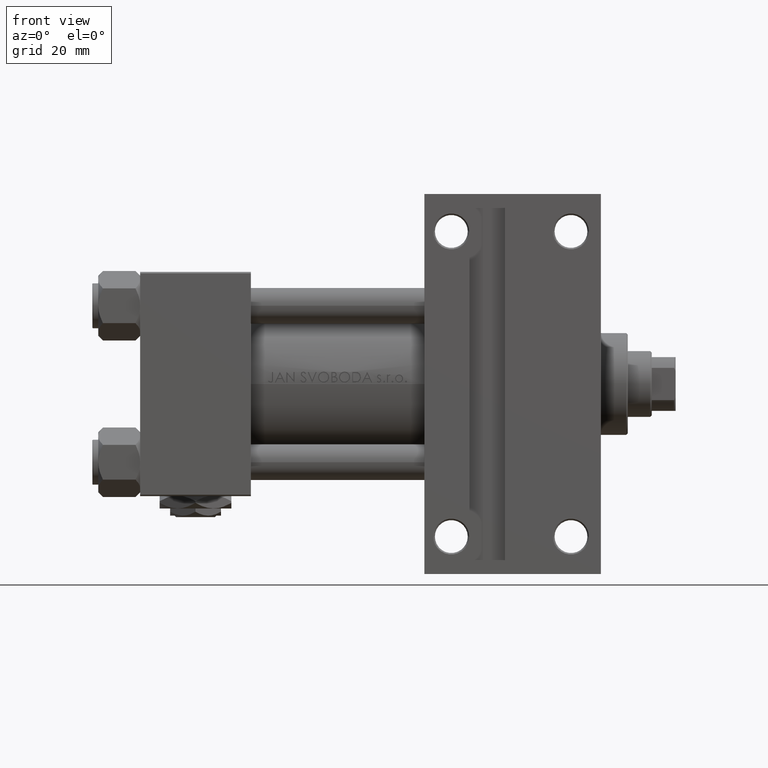
[diagram: clean part render]
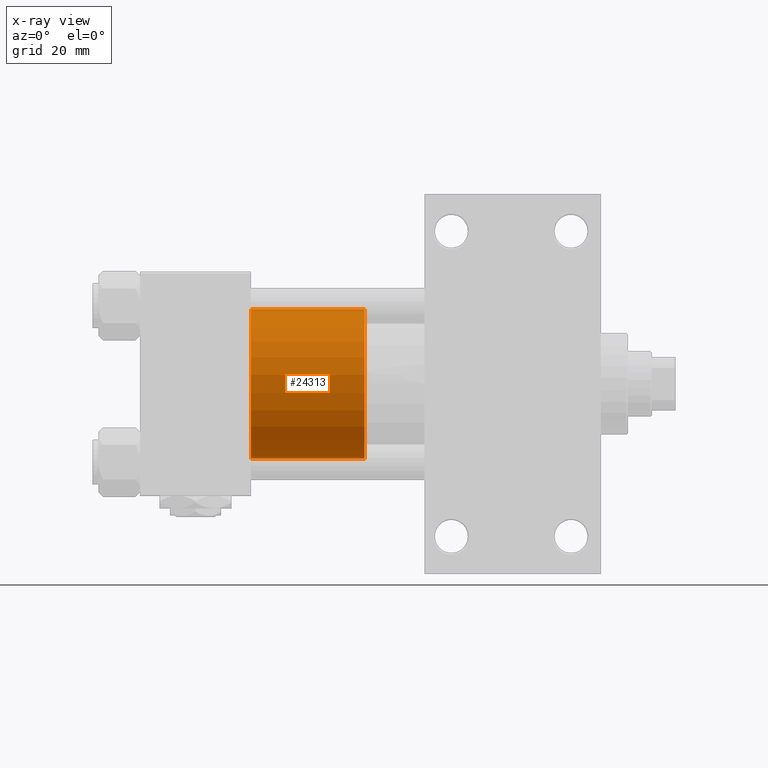
[diagram: x-ray — body ghosted, one internal face saturated and labeled with its STEP entity id]
A machine part, front view, then the same camera in x-ray: the body is ghosted and one INTERNAL B-rep face — a face not visible from any outside direction — is saturated and labeled: STEP entity #24313.
In plain terms, the highlighted cylindrical surface (partial cylindrical patch) has radius 25 mm, axis along (-1, 0, 0).
Its self-contained STEP definition (entity closure, byte-faithful):
#999 = DIRECTION ( 'NONE',  ( 1.000000000000000000, 0.000000000000000000, 0.000000000000000000 ) ) ;
#2478 = CARTESIAN_POINT ( 'NONE',  ( 25.00000000000000000, 3.061616997868383043E-15, 38.00000000000000000 ) ) ;
#2627 = VERTEX_POINT ( 'NONE', #31069 ) ;
#3911 = CARTESIAN_POINT ( 'NONE',  ( -25.00000000000000000, 0.000000000000000000, 0.000000000000000000 ) ) ;
#5971 = ORIENTED_EDGE ( 'NONE', *, *, #49341, .F. ) ;
#6123 = DIRECTION ( 'NONE',  ( -1.000000000000000000, 0.000000000000000000, 0.000000000000000000 ) ) ;
#7254 = LINE ( 'NONE', #2478, #22747 ) ;
#7778 = LINE ( 'NONE', #38419, #38083 ) ;
#9505 = CIRCLE ( 'NONE', #45561, 25.00000000000000000 ) ;
#9708 = AXIS2_PLACEMENT_3D ( 'NONE', #32495, #47820, #6123 ) ;
#13212 = ORIENTED_EDGE ( 'NONE', *, *, #40623, .F. ) ;
#13666 = EDGE_LOOP ( 'NONE', ( #13212, #46188, #38263, #5971 ) ) ;
#14641 = DIRECTION ( 'NONE',  ( 0.000000000000000000, 0.000000000000000000, 1.000000000000000000 ) ) ;
#14923 = VERTEX_POINT ( 'NONE', #3911 ) ;
#16825 = CARTESIAN_POINT ( 'NONE',  ( 0.000000000000000000, 0.000000000000000000, 0.000000000000000000 ) ) ;
#18503 = EDGE_CURVE ( 'NONE', #28823, #14923, #9505, .T. ) ;
#20970 = FACE_OUTER_BOUND ( 'NONE', #13666, .T. ) ;
#22747 = VECTOR ( 'NONE', #29347, 1000.000000000000000 ) ;
#24313 = ADVANCED_FACE ( 'NONE', ( #20970 ), #36274, .T. ) ;
#26590 = CIRCLE ( 'NONE', #35449, 25.00000000000000000 ) ;
#27318 = CARTESIAN_POINT ( 'NONE',  ( -25.00000000000000000, 0.000000000000000000, 38.00000000000000000 ) ) ;
#28823 = VERTEX_POINT ( 'NONE', #45984 ) ;
#29172 = VERTEX_POINT ( 'NONE', #27318 ) ;
#29347 = DIRECTION ( 'NONE',  ( -0.000000000000000000, -0.000000000000000000, -1.000000000000000000 ) ) ;
#30451 = CARTESIAN_POINT ( 'NONE',  ( 0.000000000000000000, 0.000000000000000000, 38.00000000000000000 ) ) ;
#31069 = CARTESIAN_POINT ( 'NONE',  ( 25.00000000000000000, 3.061616997868383043E-15, 38.00000000000000000 ) ) ;
#32495 = CARTESIAN_POINT ( 'NONE',  ( 0.000000000000000000, 0.000000000000000000, 38.00000000000000000 ) ) ;
#33816 = EDGE_CURVE ( 'NONE', #2627, #28823, #7254, .T. ) ;
#35449 = AXIS2_PLACEMENT_3D ( 'NONE', #30451, #14641, #45768 ) ;
#36274 = CYLINDRICAL_SURFACE ( 'NONE', #9708, 25.00000000000000000 ) ;
#38083 = VECTOR ( 'NONE', #44945, 1000.000000000000000 ) ;
#38263 = ORIENTED_EDGE ( 'NONE', *, *, #18503, .T. ) ;
#38419 = CARTESIAN_POINT ( 'NONE',  ( -25.00000000000000000, 0.000000000000000000, 38.00000000000000000 ) ) ;
#40623 = EDGE_CURVE ( 'NONE', #2627, #29172, #26590, .T. ) ;
#42700 = DIRECTION ( 'NONE',  ( 0.000000000000000000, 0.000000000000000000, 1.000000000000000000 ) ) ;
#44945 = DIRECTION ( 'NONE',  ( -0.000000000000000000, -0.000000000000000000, -1.000000000000000000 ) ) ;
#45561 = AXIS2_PLACEMENT_3D ( 'NONE', #16825, #42700, #999 ) ;
#45768 = DIRECTION ( 'NONE',  ( 1.000000000000000000, 0.000000000000000000, 0.000000000000000000 ) ) ;
#45984 = CARTESIAN_POINT ( 'NONE',  ( 25.00000000000000000, 3.061616997868383043E-15, 0.000000000000000000 ) ) ;
#46188 = ORIENTED_EDGE ( 'NONE', *, *, #33816, .T. ) ;
#47820 = DIRECTION ( 'NONE',  ( -0.000000000000000000, -0.000000000000000000, -1.000000000000000000 ) ) ;
#49341 = EDGE_CURVE ( 'NONE', #29172, #14923, #7778, .T. ) ;